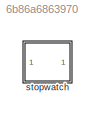
MODEL slx_6b86a6863970
KIND library
CONFIG AbsTol = auto
CONFIG EnableMultiTasking = off
CONFIG FixedStep = auto
CONFIG MaxStep = auto
CONFIG MinStep = auto
CONFIG RelTol = 1e-3
CONFIG SampleTimeConstraint = Unconstrained
CONFIG SolverName = VariableStepAuto
CONFIG StartTime = 0.0
CONFIG StopTime = 10.0
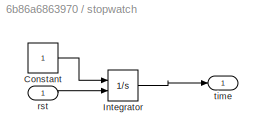
BLOCK [SubSystem] stopwatch
  Ports = [1, 1]
  RequestExecContextInheritance = off
BLOCK [Constant] stopwatch/Constant
BLOCK [Integrator] stopwatch/Integrator
  ExternalReset = rising
  Ports = [2, 1]
BLOCK [Inport] stopwatch/rst
BLOCK [Outport] stopwatch/time
  VectorParamsAs1DForOutWhenUnconnected = off
LINE stopwatch/Constant:1 -> stopwatch/Integrator:1
LINE stopwatch/Integrator:1 -> stopwatch/time:1
LINE stopwatch/rst:1 -> stopwatch/Integrator:2
